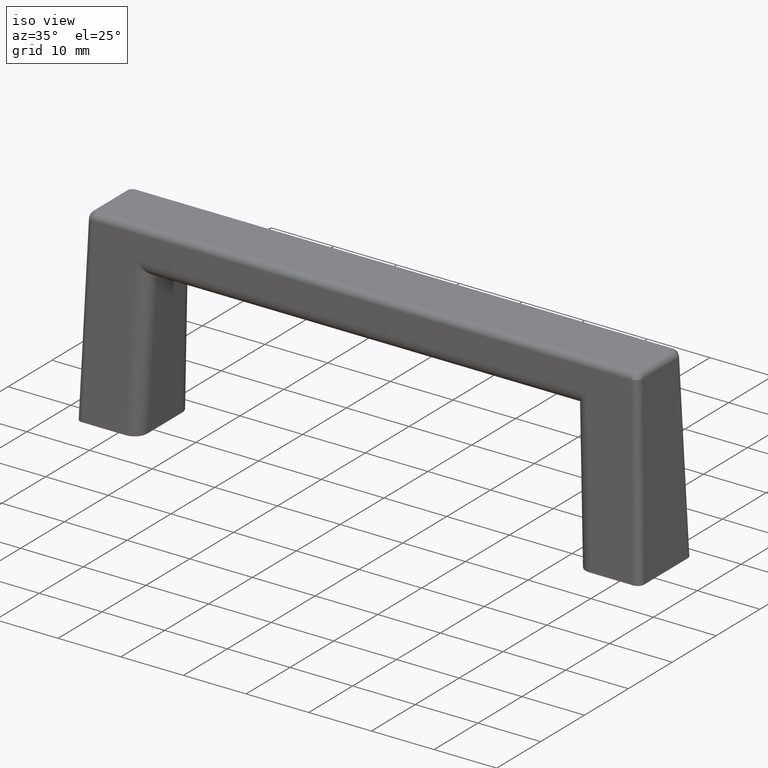
[diagram: clean part render]
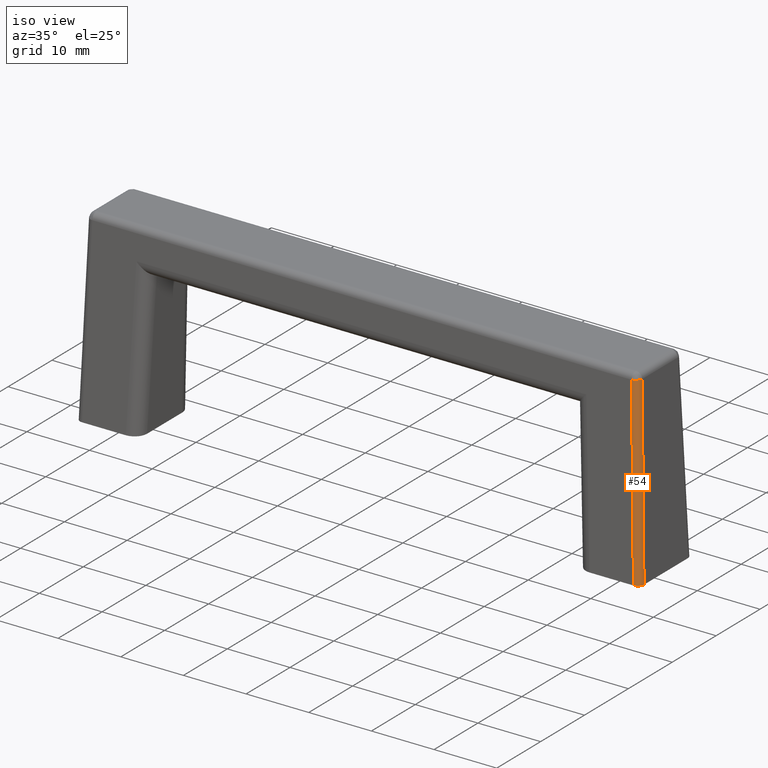
[diagram: same view with one face highlighted and labeled with its STEP entity id]
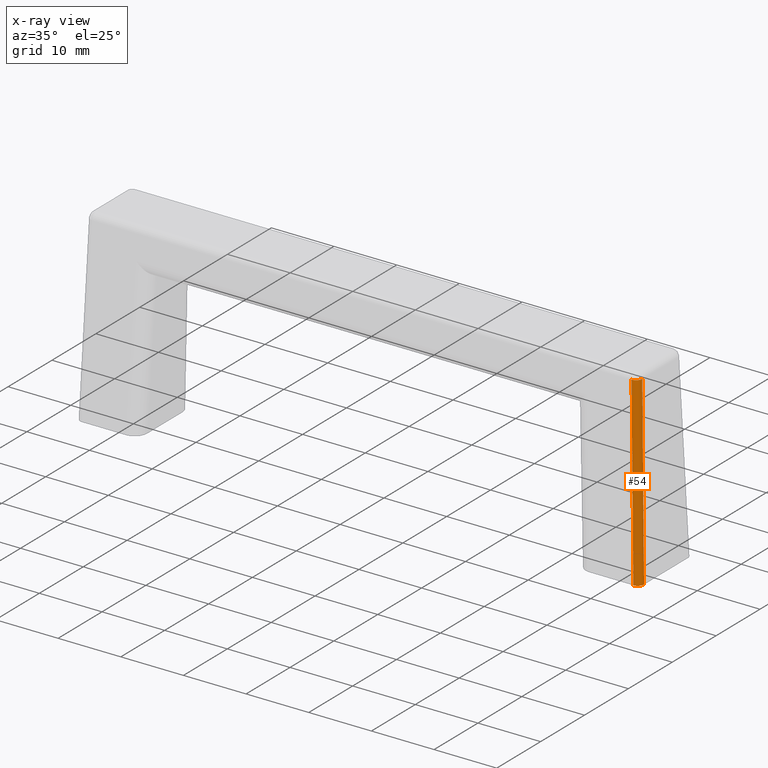
[diagram: x-ray of the same camera — body ghosted, the highlighted face saturated]
A machine part, iso view. The second image highlights one B-rep face of the part: STEP entity #54.
The next image is the same camera in x-ray: the body ghosted, the highlighted face saturated — about 0% of this face is hidden behind the body in this view.
In plain terms, the highlighted cylindrical surface (edge-blend (fillet) strip) has radius 1 mm, axis along (0.0333, -0.0333, -0.9989).
Its self-contained STEP definition (entity closure, byte-faithful):
#54=ADVANCED_FACE('',(#215),#214,.T.);
#214=CYLINDRICAL_SURFACE('',#513,1.00000000000E+00);
#215=FACE_OUTER_BOUND('',#514,.T.);
#510=CARTESIAN_POINT('',(4.40258317386E+01,-5.02583173861E+00,-7.91431413345E-01));
#511=DIRECTION('',(3.33043680206E-02,-3.33043680206E-02,-9.98890203246E-01));
#512=DIRECTION('',(2.72718269478E-02,9.99102770737E-01,-3.24021752347E-02));
#513=AXIS2_PLACEMENT_3D('',#510,#511,#512);
#514=EDGE_LOOP('',(#697,#698,#699,#700));
#697=ORIENTED_EDGE('',*,*,#842,.F.);
#698=ORIENTED_EDGE('',*,*,#843,.F.);
#699=ORIENTED_EDGE('',*,*,#840,.F.);
#700=ORIENTED_EDGE('',*,*,#844,.F.);
#840=EDGE_CURVE('',#1132,#1152,#1153,.T.);
#842=EDGE_CURVE('',#1165,#1166,#1167,.T.);
#843=EDGE_CURVE('',#1152,#1165,#1173,.T.);
#844=EDGE_CURVE('',#1166,#1132,#1179,.T.);
#1132=VERTEX_POINT('',#1591);
#1152=VERTEX_POINT('',#1603);
#1153=CIRCLE('',#1607,1.00000000000E+00);
#1165=VERTEX_POINT('',#1612);
#1166=VERTEX_POINT('',#1613);
#1167=(BOUNDED_CURVE() B_SPLINE_CURVE(2,(#1614,#1615,#1616),.UNSPECIFIED.,.F.,.F.) B_SPLINE_CURVE_WITH_KNOTS((3,3),(0.00000000000E+00,1.00000000000E+00),.UNSPECIFIED.) CURVE() GEOMETRIC_REPRESENTATION_ITEM() RATIONAL_B_SPLINE_CURVE((1.00000000000E+00,7.07499262395E-01,1.00000000000E+00)) REPRESENTATION_ITEM('') );
#1173=LINE('',#1617,#1618);
#1179=LINE('',#1620,#1621);
#1591=CARTESIAN_POINT('',(4.30325445961E+01,-5.03198923562E+00,2.90333228537E+01));
#1603=CARTESIAN_POINT('',(4.40319892356E+01,-4.03254459612E+00,2.90333228537E+01));
#1604=CARTESIAN_POINT('',(4.30325445961E+01,-4.03254459612E+00,2.90000000000E+01));
#1605=DIRECTION('',(-3.33043680208E-02,3.33043680208E-02,9.98890203246E-01));
#1606=DIRECTION('',(3.55269056925E-14,9.99444639498E-01,-3.33228536851E-02));
#1607=AXIS2_PLACEMENT_3D('',#1604,#1605,#1606);
#1612=CARTESIAN_POINT('',(4.50000000000E+01,-5.00055536050E+00,0.00000000000E+00));
#1613=CARTESIAN_POINT('',(4.40005553605E+01,-6.00000000000E+00,0.00000000000E+00));
#1614=CARTESIAN_POINT('',(4.50000000000E+01,-5.00055536050E+00,0.00000000000E+00));
#1615=CARTESIAN_POINT('',(4.50000000000E+01,-6.00000000000E+00,0.00000000000E+00));
#1616=CARTESIAN_POINT('',(4.40005553605E+01,-6.00000000000E+00,0.00000000000E+00));
#1617=CARTESIAN_POINT('',(4.40319892356E+01,-4.03254459612E+00,2.90333228537E+01));
#1618=VECTOR('',#1619,2.90655797397E+01);
#1619=DIRECTION('',(3.33043680206E-02,-3.33043680206E-02,-9.98890203246E-01));
#1620=CARTESIAN_POINT('',(4.40005553605E+01,-6.00000000000E+00,0.00000000000E+00));
#1621=VECTOR('',#1622,2.90655797397E+01);
#1622=DIRECTION('',(-3.33043680206E-02,3.33043680206E-02,9.98890203246E-01));